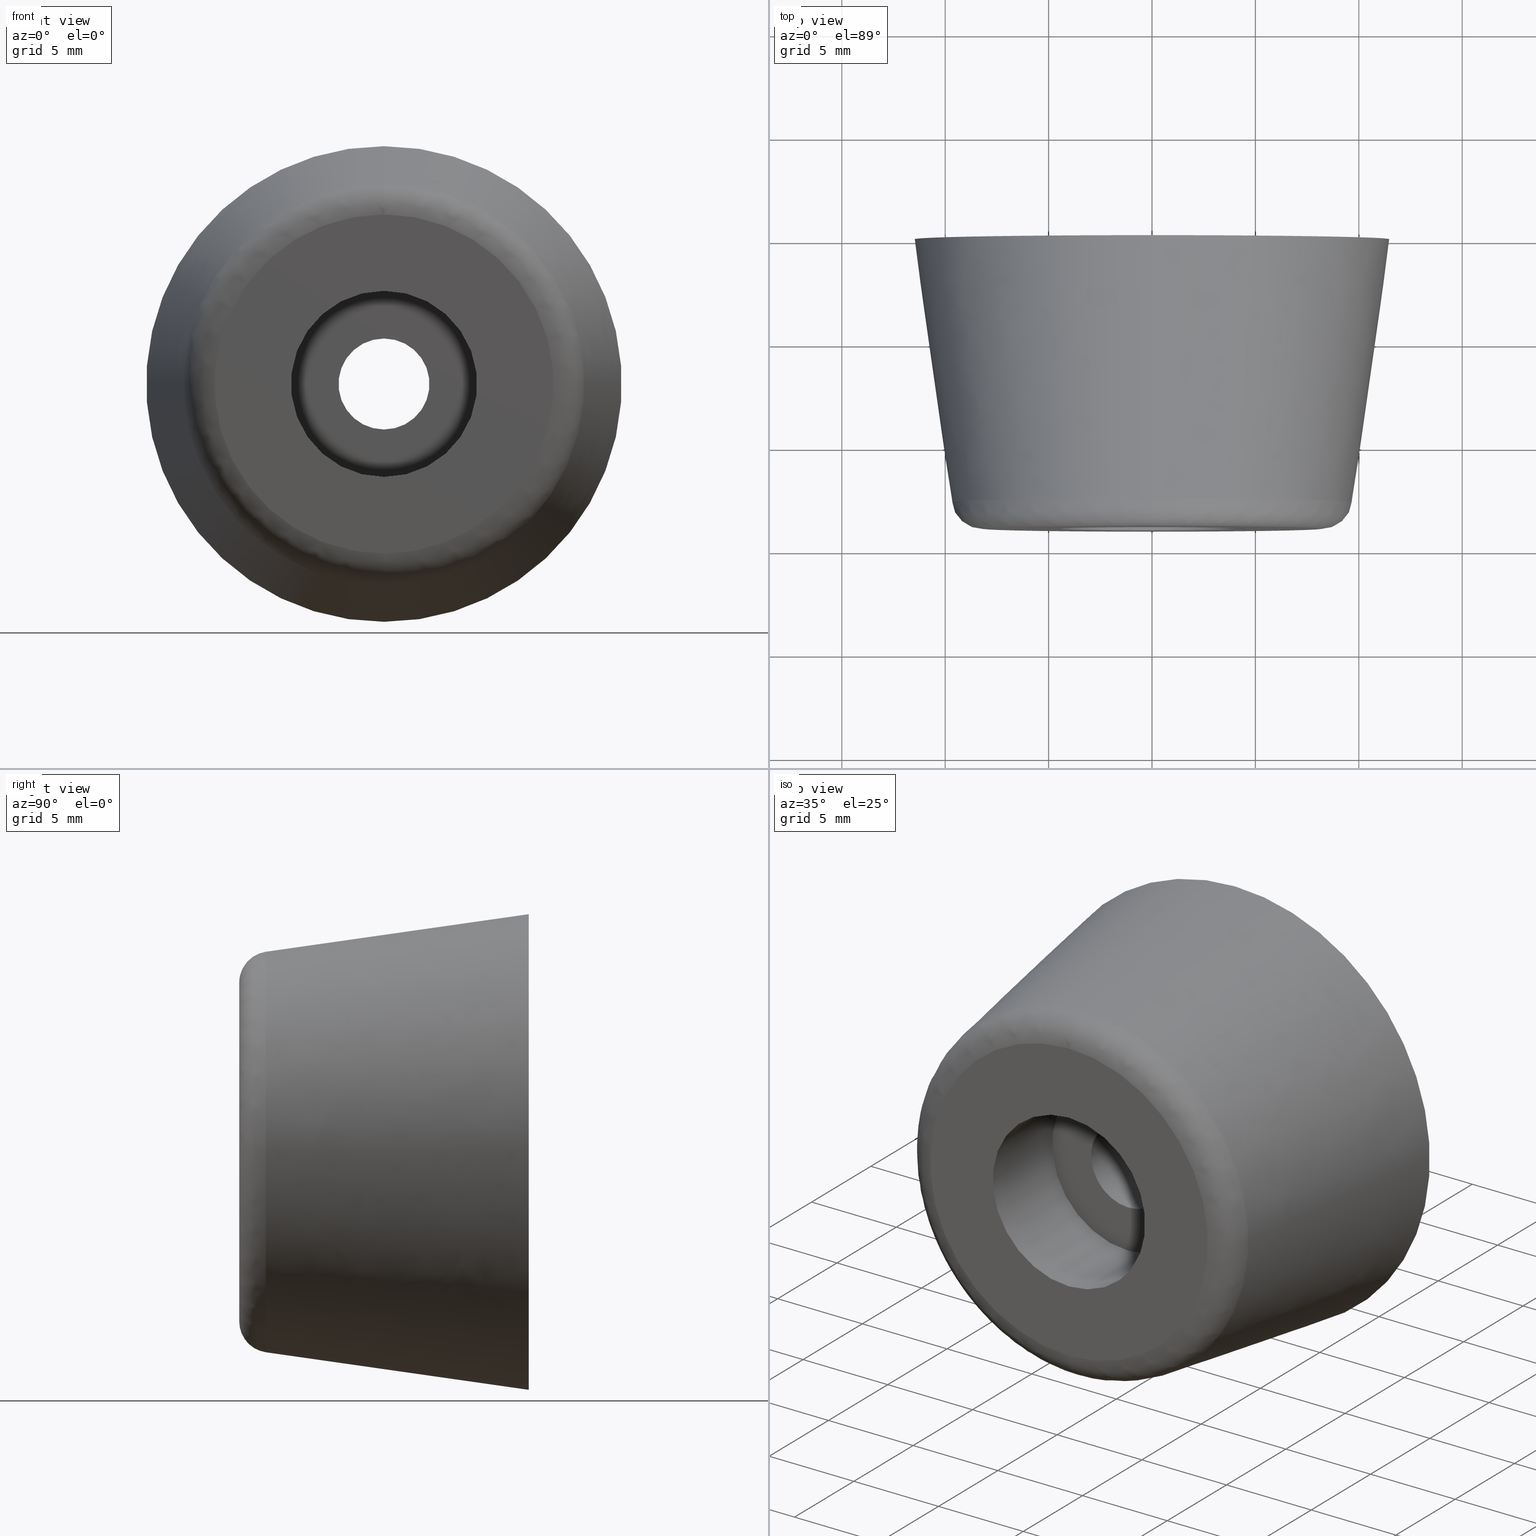
[diagram: canonical four-view strip — front | top / right | iso, engineering-drawing reading convention]
A machine part, canonical four-view strip (front | top / right | iso — engineering-drawing reading convention). The complete STEP part file that produces these views, byte-faithful:
ISO-10303-21;
HEADER;

FILE_DESCRIPTION( (''), '2;1');
FILE_NAME ('PC009.17420.TM_TP_230_28227.stp','2024-07-04T11:03:38',(''),(''),'spGate 19.8.4 (****-****-****-****)','','');

FILE_SCHEMA (('AUTOMOTIVE_DESIGN'));
ENDSEC;

DATA;
#10=(GEOMETRIC_REPRESENTATION_CONTEXT(3) GLOBAL_UNCERTAINTY_ASSIGNED_CONTEXT((#11)) GLOBAL_UNIT_ASSIGNED_CONTEXT((#12,#13,#14)) REPRESENTATION_CONTEXT('ID1','3D'));
#11=UNCERTAINTY_MEASURE_WITH_UNIT(LENGTH_MEASURE(0.01),#15,'DISTANCE_ACCURACY_VALUE','Maximum model space distance between geometric entities at asserted connectivities');
#12=(NAMED_UNIT(*) SI_UNIT($,.STERADIAN.) SOLID_ANGLE_UNIT());
#13=(CONVERSION_BASED_UNIT('DEGREE',#16) NAMED_UNIT(#17) PLANE_ANGLE_UNIT());
#14=(LENGTH_UNIT() NAMED_UNIT(*) SI_UNIT(.MILLI.,.METRE.));
#15=(LENGTH_UNIT() NAMED_UNIT(*) SI_UNIT(.MILLI.,.METRE.));
#16=PLANE_ANGLE_MEASURE_WITH_UNIT(PLANE_ANGLE_MEASURE(0.01745329252),#18);
#17=DIMENSIONAL_EXPONENTS(0.0,0.0,0.0,0.0,0.0,0.0,0.0);
#18=(NAMED_UNIT(*) PLANE_ANGLE_UNIT() SI_UNIT($,.RADIAN.));
#19=MANIFOLD_SOLID_BREP('TM_TP_230',#31);
#20=ADVANCED_BREP_SHAPE_REPRESENTATION('',(#19),#10);
#21=APPLICATION_CONTEXT('');
#22=APPLICATION_PROTOCOL_DEFINITION('International Standard','automotive_design',1999,#21);
#23=PRODUCT_DEFINITION_CONTEXT('',#21,'design');
#24=PRODUCT_CONTEXT('',#21,'mechanical');
#25=PRODUCT('','','',(#24));
#26=PRODUCT_DEFINITION_FORMATION_WITH_SPECIFIED_SOURCE('','',#25,.NOT_KNOWN.);
#27=PRODUCT_RELATED_PRODUCT_CATEGORY('tool','tool',(#25));
#28=PRODUCT_DEFINITION('','',#26,#23);
#29=PRODUCT_DEFINITION_SHAPE('','',#28);
#30=SHAPE_DEFINITION_REPRESENTATION(#29,#20);
#31=CLOSED_SHELL('',(#40,#41,#42,#43,#44,#45,#46,#47,#48,#49,#50));
#32=COLOUR_RGB('',0.00000000000E+00,0.00000000000E+00,0.00000000000E+00);
#33=FILL_AREA_STYLE_COLOUR('',#32);
#34=FILL_AREA_STYLE('',(#33));
#35=SURFACE_STYLE_FILL_AREA(#34);
#36=SURFACE_SIDE_STYLE('',(#35));
#37=SURFACE_STYLE_USAGE(.BOTH.,#36);
#38=PRESENTATION_STYLE_ASSIGNMENT((#37));
#39=STYLED_ITEM('',(#38),#19);
#40=ADVANCED_FACE('',(#52,#53),#51,.F.);
#41=ADVANCED_FACE('',(#63,#64),#62,.F.);
#42=ADVANCED_FACE('',(#74,#75),#73,.F.);
#43=ADVANCED_FACE('',(#85),#84,.F.);
#44=ADVANCED_FACE('',(#95),#94,.F.);
#45=ADVANCED_FACE('',(#105),#104,.T.);
#46=ADVANCED_FACE('',(#115),#114,.T.);
#47=ADVANCED_FACE('',(#125),#124,.T.);
#48=ADVANCED_FACE('',(#135),#134,.T.);
#49=ADVANCED_FACE('',(#145),#144,.F.);
#50=ADVANCED_FACE('',(#155),#154,.F.);
#51=PLANE('',#167);
#52=FACE_OUTER_BOUND('',#168,.T.);
#53=FACE_BOUND('',#169,.T.);
#54=COLOUR_RGB('',1.00000000000E+00,1.00000000000E+00,1.00000000000E+00);
#55=FILL_AREA_STYLE_COLOUR('',#54);
#56=FILL_AREA_STYLE('',(#55));
#57=SURFACE_STYLE_FILL_AREA(#56);
#58=SURFACE_SIDE_STYLE('',(#57));
#59=SURFACE_STYLE_USAGE(.BOTH.,#58);
#60=PRESENTATION_STYLE_ASSIGNMENT((#59));
#61=STYLED_ITEM('',(#60),#40);
#62=PLANE('',#173);
#63=FACE_OUTER_BOUND('',#174,.T.);
#64=FACE_BOUND('',#175,.T.);
#65=COLOUR_RGB('',1.00000000000E+00,1.00000000000E+00,1.00000000000E+00);
#66=FILL_AREA_STYLE_COLOUR('',#65);
#67=FILL_AREA_STYLE('',(#66));
#68=SURFACE_STYLE_FILL_AREA(#67);
#69=SURFACE_SIDE_STYLE('',(#68));
#70=SURFACE_STYLE_USAGE(.BOTH.,#69);
#71=PRESENTATION_STYLE_ASSIGNMENT((#70));
#72=STYLED_ITEM('',(#71),#41);
#73=PLANE('',#179);
#74=FACE_OUTER_BOUND('',#180,.T.);
#75=FACE_BOUND('',#181,.T.);
#76=COLOUR_RGB('',1.00000000000E+00,1.00000000000E+00,1.00000000000E+00);
#77=FILL_AREA_STYLE_COLOUR('',#76);
#78=FILL_AREA_STYLE('',(#77));
#79=SURFACE_STYLE_FILL_AREA(#78);
#80=SURFACE_SIDE_STYLE('',(#79));
#81=SURFACE_STYLE_USAGE(.BOTH.,#80);
#82=PRESENTATION_STYLE_ASSIGNMENT((#81));
#83=STYLED_ITEM('',(#82),#42);
#84=CYLINDRICAL_SURFACE('',#185,4.50000000000E+00);
#85=FACE_OUTER_BOUND('',#186,.T.);
#86=COLOUR_RGB('',1.00000000000E+00,1.00000000000E+00,1.00000000000E+00);
#87=FILL_AREA_STYLE_COLOUR('',#86);
#88=FILL_AREA_STYLE('',(#87));
#89=SURFACE_STYLE_FILL_AREA(#88);
#90=SURFACE_SIDE_STYLE('',(#89));
#91=SURFACE_STYLE_USAGE(.BOTH.,#90);
#92=PRESENTATION_STYLE_ASSIGNMENT((#91));
#93=STYLED_ITEM('',(#92),#43);
#94=CYLINDRICAL_SURFACE('',#190,4.50000000000E+00);
#95=FACE_OUTER_BOUND('',#191,.T.);
#96=COLOUR_RGB('',1.00000000000E+00,1.00000000000E+00,1.00000000000E+00);
#97=FILL_AREA_STYLE_COLOUR('',#96);
#98=FILL_AREA_STYLE('',(#97));
#99=SURFACE_STYLE_FILL_AREA(#98);
#100=SURFACE_SIDE_STYLE('',(#99));
#101=SURFACE_STYLE_USAGE(.BOTH.,#100);
#102=PRESENTATION_STYLE_ASSIGNMENT((#101));
#103=STYLED_ITEM('',(#102),#44);
#104=( BOUNDED_SURFACE() B_SPLINE_SURFACE( 2,2,((#192,#193,#194,#195,#196),(#197,#198,#199,#200,#201),(#202,#203,#204,#205,#206),(#207,#208,#209,#210,#211),(#212,#213,#214,#215,#216)), .UNSPECIFIED.,.F.,.F.,.F.) B_SPLINE_SURFACE_WITH_KNOTS((3,2,3),(3,2,3),(0.00000000000E+00,5.00000000000E-01,1.00000000000E+00),(0.00000000000E+00,5.00000000000E-01,1.00000000000E+00), .UNSPECIFIED. ) GEOMETRIC_REPRESENTATION_ITEM() RATIONAL_B_SPLINE_SURFACE(((1.00000000000E+00,7.55453954996E-01,1.00000000000E+00,7.55453954996E-01,1.00000000000E+00),(7.07106781187E-01,5.34186614452E-01,7.07106781187E-01,5.34186614452E-01,7.07106781187E-01),(1.00000000000E+00,7.55453954996E-01,1.00000000000E+00,7.55453954996E-01,1.00000000000E+00),(7.07106781187E-01,5.34186614452E-01,7.07106781187E-01,5.34186614452E-01,7.07106781187E-01),(1.00000000000E+00,7.55453954996E-01,1.00000000000E+00,7.55453954996E-01,1.00000000000E+00))) REPRESENTATION_ITEM('') SURFACE() );
#105=FACE_OUTER_BOUND('',#217,.T.);
#106=COLOUR_RGB('',1.00000000000E+00,1.00000000000E+00,1.00000000000E+00);
#107=FILL_AREA_STYLE_COLOUR('',#106);
#108=FILL_AREA_STYLE('',(#107));
#109=SURFACE_STYLE_FILL_AREA(#108);
#110=SURFACE_SIDE_STYLE('',(#109));
#111=SURFACE_STYLE_USAGE(.BOTH.,#110);
#112=PRESENTATION_STYLE_ASSIGNMENT((#111));
#113=STYLED_ITEM('',(#112),#45);
#114=( BOUNDED_SURFACE() B_SPLINE_SURFACE( 2,2,((#218,#219,#220,#221,#222),(#223,#224,#225,#226,#227),(#228,#229,#230,#231,#232),(#233,#234,#235,#236,#237),(#238,#239,#240,#241,#242)), .UNSPECIFIED.,.F.,.F.,.F.) B_SPLINE_SURFACE_WITH_KNOTS((3,2,3),(3,2,3),(0.00000000000E+00,5.00000000000E-01,1.00000000000E+00),(0.00000000000E+00,5.00000000000E-01,1.00000000000E+00), .UNSPECIFIED. ) GEOMETRIC_REPRESENTATION_ITEM() RATIONAL_B_SPLINE_SURFACE(((1.00000000000E+00,7.55453954996E-01,1.00000000000E+00,7.55453954996E-01,1.00000000000E+00),(7.07106781187E-01,5.34186614452E-01,7.07106781187E-01,5.34186614452E-01,7.07106781187E-01),(1.00000000000E+00,7.55453954996E-01,1.00000000000E+00,7.55453954996E-01,1.00000000000E+00),(7.07106781187E-01,5.34186614452E-01,7.07106781187E-01,5.34186614452E-01,7.07106781187E-01),(1.00000000000E+00,7.55453954996E-01,1.00000000000E+00,7.55453954996E-01,1.00000000000E+00))) REPRESENTATION_ITEM('') SURFACE() );
#115=FACE_OUTER_BOUND('',#243,.T.);
#116=COLOUR_RGB('',1.00000000000E+00,1.00000000000E+00,1.00000000000E+00);
#117=FILL_AREA_STYLE_COLOUR('',#116);
#118=FILL_AREA_STYLE('',(#117));
#119=SURFACE_STYLE_FILL_AREA(#118);
#120=SURFACE_SIDE_STYLE('',(#119));
#121=SURFACE_STYLE_USAGE(.BOTH.,#120);
#122=PRESENTATION_STYLE_ASSIGNMENT((#121));
#123=STYLED_ITEM('',(#122),#46);
#124=( BOUNDED_SURFACE() B_SPLINE_SURFACE( 2,1,((#244,#245),(#246,#247),(#248,#249),(#250,#251),(#252,#253)), .UNSPECIFIED.,.F.,.F.,.F.) B_SPLINE_SURFACE_WITH_KNOTS((3,2,3),(2,2),(0.00000000000E+00,5.00000000000E-01,1.00000000000E+00),(0.00000000000E+00,1.00000000000E+00), .UNSPECIFIED. ) GEOMETRIC_REPRESENTATION_ITEM() RATIONAL_B_SPLINE_SURFACE(((1.00000000000E+00,1.00000000000E+00),(7.07106781187E-01,7.07106781187E-01),(1.00000000000E+00,1.00000000000E+00),(7.07106781187E-01,7.07106781187E-01),(1.00000000000E+00,1.00000000000E+00))) REPRESENTATION_ITEM('') SURFACE() );
#125=FACE_OUTER_BOUND('',#254,.T.);
#126=COLOUR_RGB('',1.00000000000E+00,1.00000000000E+00,1.00000000000E+00);
#127=FILL_AREA_STYLE_COLOUR('',#126);
#128=FILL_AREA_STYLE('',(#127));
#129=SURFACE_STYLE_FILL_AREA(#128);
#130=SURFACE_SIDE_STYLE('',(#129));
#131=SURFACE_STYLE_USAGE(.BOTH.,#130);
#132=PRESENTATION_STYLE_ASSIGNMENT((#131));
#133=STYLED_ITEM('',(#132),#47);
#134=( BOUNDED_SURFACE() B_SPLINE_SURFACE( 2,1,((#255,#256),(#257,#258),(#259,#260),(#261,#262),(#263,#264)), .UNSPECIFIED.,.F.,.F.,.F.) B_SPLINE_SURFACE_WITH_KNOTS((3,2,3),(2,2),(0.00000000000E+00,5.00000000000E-01,1.00000000000E+00),(0.00000000000E+00,1.00000000000E+00), .UNSPECIFIED. ) GEOMETRIC_REPRESENTATION_ITEM() RATIONAL_B_SPLINE_SURFACE(((1.00000000000E+00,1.00000000000E+00),(7.07106781187E-01,7.07106781187E-01),(1.00000000000E+00,1.00000000000E+00),(7.07106781187E-01,7.07106781187E-01),(1.00000000000E+00,1.00000000000E+00))) REPRESENTATION_ITEM('') SURFACE() );
#135=FACE_OUTER_BOUND('',#265,.T.);
#136=COLOUR_RGB('',1.00000000000E+00,1.00000000000E+00,1.00000000000E+00);
#137=FILL_AREA_STYLE_COLOUR('',#136);
#138=FILL_AREA_STYLE('',(#137));
#139=SURFACE_STYLE_FILL_AREA(#138);
#140=SURFACE_SIDE_STYLE('',(#139));
#141=SURFACE_STYLE_USAGE(.BOTH.,#140);
#142=PRESENTATION_STYLE_ASSIGNMENT((#141));
#143=STYLED_ITEM('',(#142),#48);
#144=CYLINDRICAL_SURFACE('',#269,2.20000000000E+00);
#145=FACE_OUTER_BOUND('',#270,.T.);
#146=COLOUR_RGB('',1.00000000000E+00,1.00000000000E+00,1.00000000000E+00);
#147=FILL_AREA_STYLE_COLOUR('',#146);
#148=FILL_AREA_STYLE('',(#147));
#149=SURFACE_STYLE_FILL_AREA(#148);
#150=SURFACE_SIDE_STYLE('',(#149));
#151=SURFACE_STYLE_USAGE(.BOTH.,#150);
#152=PRESENTATION_STYLE_ASSIGNMENT((#151));
#153=STYLED_ITEM('',(#152),#49);
#154=CYLINDRICAL_SURFACE('',#274,2.20000000000E+00);
#155=FACE_OUTER_BOUND('',#275,.T.);
#156=COLOUR_RGB('',1.00000000000E+00,1.00000000000E+00,1.00000000000E+00);
#157=FILL_AREA_STYLE_COLOUR('',#156);
#158=FILL_AREA_STYLE('',(#157));
#159=SURFACE_STYLE_FILL_AREA(#158);
#160=SURFACE_SIDE_STYLE('',(#159));
#161=SURFACE_STYLE_USAGE(.BOTH.,#160);
#162=PRESENTATION_STYLE_ASSIGNMENT((#161));
#163=STYLED_ITEM('',(#162),#50);
#164=CARTESIAN_POINT('',(-9.35307436087E+00,-9.00000000000E+00,-5.85000000000E+00));
#165=DIRECTION('',(0.00000000000E+00,1.00000000000E+00,0.00000000000E+00));
#166=DIRECTION('',(0.00000000000E+00,-0.00000000000E+00,1.00000000000E+00));
#167=AXIS2_PLACEMENT_3D('',#164,#165,#166);
#168=EDGE_LOOP('',(#276,#277));
#169=EDGE_LOOP('',(#278,#279));
#170=CARTESIAN_POINT('',(-1.70414197447E+01,-1.40000000000E+01,-1.06587739667E+01));
#171=DIRECTION('',(0.00000000000E+00,1.00000000000E+00,0.00000000000E+00));
#172=DIRECTION('',(0.00000000000E+00,-0.00000000000E+00,1.00000000000E+00));
#173=AXIS2_PLACEMENT_3D('',#170,#171,#172);
#174=EDGE_LOOP('',(#280,#281));
#175=EDGE_LOOP('',(#282,#283));
#176=CARTESIAN_POINT('',(-2.39023011445E+01,0.00000000000E+00,2.64500000000E+01));
#177=DIRECTION('',(0.00000000000E+00,-1.00000000000E+00,-0.00000000000E+00));
#178=DIRECTION('',(0.00000000000E+00,0.00000000000E+00,-1.00000000000E+00));
#179=AXIS2_PLACEMENT_3D('',#176,#177,#178);
#180=EDGE_LOOP('',(#284,#285));
#181=EDGE_LOOP('',(#286,#287));
#182=CARTESIAN_POINT('',(-1.42108547152E-14,0.00000000000E+00,0.00000000000E+00));
#183=DIRECTION('',(-0.00000000000E+00,1.00000000000E+00,0.00000000000E+00));
#184=DIRECTION('',(-0.00000000000E+00,-0.00000000000E+00,1.00000000000E+00));
#185=AXIS2_PLACEMENT_3D('',#182,#183,#184);
#186=EDGE_LOOP('',(#288,#289,#290,#291));
#187=CARTESIAN_POINT('',(-1.42108547152E-14,0.00000000000E+00,0.00000000000E+00));
#188=DIRECTION('',(-0.00000000000E+00,1.00000000000E+00,0.00000000000E+00));
#189=DIRECTION('',(-0.00000000000E+00,-0.00000000000E+00,1.00000000000E+00));
#190=AXIS2_PLACEMENT_3D('',#187,#188,#189);
#191=EDGE_LOOP('',(#292,#293,#294,#295));
#192=CARTESIAN_POINT('',(-1.50636942910E-14,-1.27121320344E+01,9.68398113795E+00));
#193=CARTESIAN_POINT('',(-1.50411638439E-14,-1.40000000000E+01,9.50000000000E+00));
#194=CARTESIAN_POINT('',(-1.48818495250E-14,-1.40000000000E+01,8.19905689746E+00));
#195=CARTESIAN_POINT('',(-1.47225352061E-14,-1.40000000000E+01,6.89811379491E+00));
#196=CARTESIAN_POINT('',(-1.47000047590E-14,-1.27121320344E+01,6.71413265697E+00));
#197=CARTESIAN_POINT('',(-9.68398113795E+00,-1.27121320344E+01,9.68398113795E+00));
#198=CARTESIAN_POINT('',(-9.50000000000E+00,-1.40000000000E+01,9.50000000000E+00));
#199=CARTESIAN_POINT('',(-8.19905689746E+00,-1.40000000000E+01,8.19905689746E+00));
#200=CARTESIAN_POINT('',(-6.89811379491E+00,-1.40000000000E+01,6.89811379491E+00));
#201=CARTESIAN_POINT('',(-6.71413265697E+00,-1.27121320344E+01,6.71413265697E+00));
#202=CARTESIAN_POINT('',(-9.68398113795E+00,-1.27121320344E+01,-5.92933658003E-16));
#203=CARTESIAN_POINT('',(-9.50000000000E+00,-1.40000000000E+01,-5.81668806536E-16));
#204=CARTESIAN_POINT('',(-8.19905689746E+00,-1.40000000000E+01,-5.02014277923E-16));
#205=CARTESIAN_POINT('',(-6.89811379491E+00,-1.40000000000E+01,-4.22359749309E-16));
#206=CARTESIAN_POINT('',(-6.71413265697E+00,-1.27121320344E+01,-4.11094897842E-16));
#207=CARTESIAN_POINT('',(-9.68398113795E+00,-1.27121320344E+01,-9.68398113795E+00));
#208=CARTESIAN_POINT('',(-9.50000000000E+00,-1.40000000000E+01,-9.50000000000E+00));
#209=CARTESIAN_POINT('',(-8.19905689746E+00,-1.40000000000E+01,-8.19905689746E+00));
#210=CARTESIAN_POINT('',(-6.89811379491E+00,-1.40000000000E+01,-6.89811379491E+00));
#211=CARTESIAN_POINT('',(-6.71413265697E+00,-1.27121320344E+01,-6.71413265697E+00));
#212=CARTESIAN_POINT('',(-1.38778269750E-14,-1.27121320344E+01,-9.68398113795E+00));
#213=CARTESIAN_POINT('',(-1.38778262309E-14,-1.40000000000E+01,-9.50000000000E+00));
#214=CARTESIAN_POINT('',(-1.38778209692E-14,-1.40000000000E+01,-8.19905689746E+00));
#215=CARTESIAN_POINT('',(-1.38778157075E-14,-1.40000000000E+01,-6.89811379491E+00));
#216=CARTESIAN_POINT('',(-1.38778149633E-14,-1.27121320344E+01,-6.71413265697E+00));
#217=EDGE_LOOP('',(#296,#297,#298,#299));
#218=CARTESIAN_POINT('',(-1.38778269750E-14,-1.27121320344E+01,-9.68398113795E+00));
#219=CARTESIAN_POINT('',(-1.38778262309E-14,-1.40000000000E+01,-9.50000000000E+00));
#220=CARTESIAN_POINT('',(-1.38778209692E-14,-1.40000000000E+01,-8.19905689746E+00));
#221=CARTESIAN_POINT('',(-1.38778157075E-14,-1.40000000000E+01,-6.89811379491E+00));
#222=CARTESIAN_POINT('',(-1.38778149633E-14,-1.27121320344E+01,-6.71413265697E+00));
#223=CARTESIAN_POINT('',(9.68398113795E+00,-1.27121320344E+01,-9.68398113795E+00));
#224=CARTESIAN_POINT('',(9.50000000000E+00,-1.40000000000E+01,-9.50000000000E+00));
#225=CARTESIAN_POINT('',(8.19905689746E+00,-1.40000000000E+01,-8.19905689746E+00));
#226=CARTESIAN_POINT('',(6.89811379491E+00,-1.40000000000E+01,-6.89811379491E+00));
#227=CARTESIAN_POINT('',(6.71413265697E+00,-1.27121320344E+01,-6.71413265697E+00));
#228=CARTESIAN_POINT('',(9.68398113795E+00,-1.27121320344E+01,-5.93011992356E-16));
#229=CARTESIAN_POINT('',(9.50000000000E+00,-1.40000000000E+01,-5.81745652654E-16));
#230=CARTESIAN_POINT('',(8.19905689746E+00,-1.40000000000E+01,-5.02080600627E-16));
#231=CARTESIAN_POINT('',(6.89811379491E+00,-1.40000000000E+01,-4.22415548600E-16));
#232=CARTESIAN_POINT('',(6.71413265697E+00,-1.27121320344E+01,-4.11149208898E-16));
#233=CARTESIAN_POINT('',(9.68398113795E+00,-1.27121320344E+01,9.68398113795E+00));
#234=CARTESIAN_POINT('',(9.50000000000E+00,-1.40000000000E+01,9.50000000000E+00));
#235=CARTESIAN_POINT('',(8.19905689746E+00,-1.40000000000E+01,8.19905689746E+00));
#236=CARTESIAN_POINT('',(6.89811379491E+00,-1.40000000000E+01,6.89811379491E+00));
#237=CARTESIAN_POINT('',(6.71413265697E+00,-1.27121320344E+01,6.71413265697E+00));
#238=CARTESIAN_POINT('',(-1.26918029903E-14,-1.27121320344E+01,9.68398113795E+00));
#239=CARTESIAN_POINT('',(-1.27143349256E-14,-1.40000000000E+01,9.50000000000E+00));
#240=CARTESIAN_POINT('',(-1.28736597679E-14,-1.40000000000E+01,8.19905689746E+00));
#241=CARTESIAN_POINT('',(-1.30329846103E-14,-1.40000000000E+01,6.89811379491E+00));
#242=CARTESIAN_POINT('',(-1.30555165455E-14,-1.27121320344E+01,6.71413265697E+00));
#243=EDGE_LOOP('',(#300,#301,#302,#303));
#244=CARTESIAN_POINT('',(-1.65827460159E-14,-1.27121320344E+01,-9.68398113795E+00));
#245=CARTESIAN_POINT('',(-1.70275423532E-14,0.00000000000E+00,-1.15000000000E+01));
#246=CARTESIAN_POINT('',(-9.68398113795E+00,-1.27121320344E+01,-9.68398113795E+00));
#247=CARTESIAN_POINT('',(-1.15000000000E+01,0.00000000000E+00,-1.15000000000E+01));
#248=CARTESIAN_POINT('',(-9.68398113795E+00,-1.27121320344E+01,1.77891847554E-15));
#249=CARTESIAN_POINT('',(-1.15000000000E+01,0.00000000000E+00,2.11251572853E-15));
#250=CARTESIAN_POINT('',(-9.68398113795E+00,-1.27121320344E+01,9.68398113795E+00));
#251=CARTESIAN_POINT('',(-1.15000000000E+01,0.00000000000E+00,1.15000000000E+01));
#252=CARTESIAN_POINT('',(-1.30249090648E-14,-1.27121320344E+01,9.68398113795E+00));
#253=CARTESIAN_POINT('',(-1.28025108962E-14,0.00000000000E+00,1.15000000000E+01));
#254=EDGE_LOOP('',(#304,#305,#306,#307));
#255=CARTESIAN_POINT('',(-1.30249090648E-14,-1.27121320344E+01,9.68398113795E+00));
#256=CARTESIAN_POINT('',(-1.28025108962E-14,0.00000000000E+00,1.15000000000E+01));
#257=CARTESIAN_POINT('',(9.68398113795E+00,-1.27121320344E+01,9.68398113795E+00));
#258=CARTESIAN_POINT('',(1.15000000000E+01,0.00000000000E+00,1.15000000000E+01));
#259=CARTESIAN_POINT('',(9.68398113795E+00,-1.27121320344E+01,-5.92972825180E-16));
#260=CARTESIAN_POINT('',(1.15000000000E+01,0.00000000000E+00,-7.04171909510E-16));
#261=CARTESIAN_POINT('',(9.68398113795E+00,-1.27121320344E+01,-9.68398113795E+00));
#262=CARTESIAN_POINT('',(1.15000000000E+01,0.00000000000E+00,-1.15000000000E+01));
#263=CARTESIAN_POINT('',(-1.42108547152E-14,-1.27121320344E+01,-9.68398113795E+00));
#264=CARTESIAN_POINT('',(-1.42108547152E-14,0.00000000000E+00,-1.15000000000E+01));
#265=EDGE_LOOP('',(#308,#309,#310,#311));
#266=CARTESIAN_POINT('',(-1.42108547152E-14,0.00000000000E+00,0.00000000000E+00));
#267=DIRECTION('',(-0.00000000000E+00,1.00000000000E+00,0.00000000000E+00));
#268=DIRECTION('',(-0.00000000000E+00,-0.00000000000E+00,1.00000000000E+00));
#269=AXIS2_PLACEMENT_3D('',#266,#267,#268);
#270=EDGE_LOOP('',(#312,#313,#314,#315));
#271=CARTESIAN_POINT('',(-1.42108547152E-14,0.00000000000E+00,0.00000000000E+00));
#272=DIRECTION('',(-0.00000000000E+00,1.00000000000E+00,0.00000000000E+00));
#273=DIRECTION('',(-0.00000000000E+00,-0.00000000000E+00,1.00000000000E+00));
#274=AXIS2_PLACEMENT_3D('',#271,#272,#273);
#275=EDGE_LOOP('',(#316,#317,#318,#319));
#276=ORIENTED_EDGE('',*,*,#320,.T.);
#277=ORIENTED_EDGE('',*,*,#321,.T.);
#278=ORIENTED_EDGE('',*,*,#322,.F.);
#279=ORIENTED_EDGE('',*,*,#323,.F.);
#280=ORIENTED_EDGE('',*,*,#324,.T.);
#281=ORIENTED_EDGE('',*,*,#325,.T.);
#282=ORIENTED_EDGE('',*,*,#326,.F.);
#283=ORIENTED_EDGE('',*,*,#327,.F.);
#284=ORIENTED_EDGE('',*,*,#328,.F.);
#285=ORIENTED_EDGE('',*,*,#329,.F.);
#286=ORIENTED_EDGE('',*,*,#330,.T.);
#287=ORIENTED_EDGE('',*,*,#331,.T.);
#288=ORIENTED_EDGE('',*,*,#327,.T.);
#289=ORIENTED_EDGE('',*,*,#332,.T.);
#290=ORIENTED_EDGE('',*,*,#320,.F.);
#291=ORIENTED_EDGE('',*,*,#333,.F.);
#292=ORIENTED_EDGE('',*,*,#321,.F.);
#293=ORIENTED_EDGE('',*,*,#332,.F.);
#294=ORIENTED_EDGE('',*,*,#326,.T.);
#295=ORIENTED_EDGE('',*,*,#333,.T.);
#296=ORIENTED_EDGE('',*,*,#325,.F.);
#297=ORIENTED_EDGE('',*,*,#334,.F.);
#298=ORIENTED_EDGE('',*,*,#335,.T.);
#299=ORIENTED_EDGE('',*,*,#336,.T.);
#300=ORIENTED_EDGE('',*,*,#337,.T.);
#301=ORIENTED_EDGE('',*,*,#334,.T.);
#302=ORIENTED_EDGE('',*,*,#324,.F.);
#303=ORIENTED_EDGE('',*,*,#336,.F.);
#304=ORIENTED_EDGE('',*,*,#328,.T.);
#305=ORIENTED_EDGE('',*,*,#338,.F.);
#306=ORIENTED_EDGE('',*,*,#335,.F.);
#307=ORIENTED_EDGE('',*,*,#339,.T.);
#308=ORIENTED_EDGE('',*,*,#337,.F.);
#309=ORIENTED_EDGE('',*,*,#338,.T.);
#310=ORIENTED_EDGE('',*,*,#329,.T.);
#311=ORIENTED_EDGE('',*,*,#339,.F.);
#312=ORIENTED_EDGE('',*,*,#323,.T.);
#313=ORIENTED_EDGE('',*,*,#340,.T.);
#314=ORIENTED_EDGE('',*,*,#330,.F.);
#315=ORIENTED_EDGE('',*,*,#341,.F.);
#316=ORIENTED_EDGE('',*,*,#331,.F.);
#317=ORIENTED_EDGE('',*,*,#340,.F.);
#318=ORIENTED_EDGE('',*,*,#322,.T.);
#319=ORIENTED_EDGE('',*,*,#341,.T.);
#320=EDGE_CURVE('',#342,#343,#344,.T.);
#321=EDGE_CURVE('',#343,#342,#350,.T.);
#322=EDGE_CURVE('',#356,#357,#358,.T.);
#323=EDGE_CURVE('',#357,#356,#364,.T.);
#324=EDGE_CURVE('',#370,#371,#372,.T.);
#325=EDGE_CURVE('',#371,#370,#378,.T.);
#326=EDGE_CURVE('',#384,#385,#386,.T.);
#327=EDGE_CURVE('',#385,#384,#392,.T.);
#328=EDGE_CURVE('',#398,#399,#400,.T.);
#329=EDGE_CURVE('',#399,#398,#406,.T.);
#330=EDGE_CURVE('',#412,#413,#414,.T.);
#331=EDGE_CURVE('',#413,#412,#420,.T.);
#332=EDGE_CURVE('',#384,#343,#426,.T.);
#333=EDGE_CURVE('',#385,#342,#432,.T.);
#334=EDGE_CURVE('',#438,#371,#439,.T.);
#335=EDGE_CURVE('',#438,#445,#446,.T.);
#336=EDGE_CURVE('',#445,#370,#452,.T.);
#337=EDGE_CURVE('',#445,#438,#458,.T.);
#338=EDGE_CURVE('',#445,#399,#464,.T.);
#339=EDGE_CURVE('',#438,#398,#470,.T.);
#340=EDGE_CURVE('',#356,#413,#476,.T.);
#341=EDGE_CURVE('',#357,#412,#482,.T.);
#342=VERTEX_POINT('',#488);
#343=VERTEX_POINT('',#489);
#344=CIRCLE('',#493,4.50000000000E+00);
#345=COLOUR_RGB('',1.00000000000E+00,1.00000000000E+00,1.00000000000E+00);
#346=DRAUGHTING_PRE_DEFINED_CURVE_FONT('continuous');
#347=CURVE_STYLE( '',#346, POSITIVE_LENGTH_MEASURE(1.00000000000E-06),#345);
#348=PRESENTATION_STYLE_ASSIGNMENT((#347));
#349=STYLED_ITEM('',(#348),#320);
#350=CIRCLE('',#497,4.50000000000E+00);
#351=COLOUR_RGB('',1.00000000000E+00,1.00000000000E+00,1.00000000000E+00);
#352=DRAUGHTING_PRE_DEFINED_CURVE_FONT('continuous');
#353=CURVE_STYLE( '',#352, POSITIVE_LENGTH_MEASURE(1.00000000000E-06),#351);
#354=PRESENTATION_STYLE_ASSIGNMENT((#353));
#355=STYLED_ITEM('',(#354),#321);
#356=VERTEX_POINT('',#498);
#357=VERTEX_POINT('',#499);
#358=CIRCLE('',#503,2.20000000000E+00);
#359=COLOUR_RGB('',1.00000000000E+00,1.00000000000E+00,1.00000000000E+00);
#360=DRAUGHTING_PRE_DEFINED_CURVE_FONT('continuous');
#361=CURVE_STYLE( '',#360, POSITIVE_LENGTH_MEASURE(1.00000000000E-06),#359);
#362=PRESENTATION_STYLE_ASSIGNMENT((#361));
#363=STYLED_ITEM('',(#362),#322);
#364=CIRCLE('',#507,2.20000000000E+00);
#365=COLOUR_RGB('',1.00000000000E+00,1.00000000000E+00,1.00000000000E+00);
#366=DRAUGHTING_PRE_DEFINED_CURVE_FONT('continuous');
#367=CURVE_STYLE( '',#366, POSITIVE_LENGTH_MEASURE(1.00000000000E-06),#365);
#368=PRESENTATION_STYLE_ASSIGNMENT((#367));
#369=STYLED_ITEM('',(#368),#323);
#370=VERTEX_POINT('',#508);
#371=VERTEX_POINT('',#509);
#372=CIRCLE('',#513,8.19905689746E+00);
#373=COLOUR_RGB('',1.00000000000E+00,1.00000000000E+00,1.00000000000E+00);
#374=DRAUGHTING_PRE_DEFINED_CURVE_FONT('continuous');
#375=CURVE_STYLE( '',#374, POSITIVE_LENGTH_MEASURE(1.00000000000E-06),#373);
#376=PRESENTATION_STYLE_ASSIGNMENT((#375));
#377=STYLED_ITEM('',(#376),#324);
#378=CIRCLE('',#517,8.19905689746E+00);
#379=COLOUR_RGB('',1.00000000000E+00,1.00000000000E+00,1.00000000000E+00);
#380=DRAUGHTING_PRE_DEFINED_CURVE_FONT('continuous');
#381=CURVE_STYLE( '',#380, POSITIVE_LENGTH_MEASURE(1.00000000000E-06),#379);
#382=PRESENTATION_STYLE_ASSIGNMENT((#381));
#383=STYLED_ITEM('',(#382),#325);
#384=VERTEX_POINT('',#518);
#385=VERTEX_POINT('',#519);
#386=CIRCLE('',#523,4.50000000000E+00);
#387=COLOUR_RGB('',1.00000000000E+00,1.00000000000E+00,1.00000000000E+00);
#388=DRAUGHTING_PRE_DEFINED_CURVE_FONT('continuous');
#389=CURVE_STYLE( '',#388, POSITIVE_LENGTH_MEASURE(1.00000000000E-06),#387);
#390=PRESENTATION_STYLE_ASSIGNMENT((#389));
#391=STYLED_ITEM('',(#390),#326);
#392=CIRCLE('',#527,4.50000000000E+00);
#393=COLOUR_RGB('',1.00000000000E+00,1.00000000000E+00,1.00000000000E+00);
#394=DRAUGHTING_PRE_DEFINED_CURVE_FONT('continuous');
#395=CURVE_STYLE( '',#394, POSITIVE_LENGTH_MEASURE(1.00000000000E-06),#393);
#396=PRESENTATION_STYLE_ASSIGNMENT((#395));
#397=STYLED_ITEM('',(#396),#327);
#398=VERTEX_POINT('',#528);
#399=VERTEX_POINT('',#529);
#400=CIRCLE('',#533,1.15000000000E+01);
#401=COLOUR_RGB('',1.00000000000E+00,1.00000000000E+00,1.00000000000E+00);
#402=DRAUGHTING_PRE_DEFINED_CURVE_FONT('continuous');
#403=CURVE_STYLE( '',#402, POSITIVE_LENGTH_MEASURE(1.00000000000E-06),#401);
#404=PRESENTATION_STYLE_ASSIGNMENT((#403));
#405=STYLED_ITEM('',(#404),#328);
#406=CIRCLE('',#537,1.15000000000E+01);
#407=COLOUR_RGB('',1.00000000000E+00,1.00000000000E+00,1.00000000000E+00);
#408=DRAUGHTING_PRE_DEFINED_CURVE_FONT('continuous');
#409=CURVE_STYLE( '',#408, POSITIVE_LENGTH_MEASURE(1.00000000000E-06),#407);
#410=PRESENTATION_STYLE_ASSIGNMENT((#409));
#411=STYLED_ITEM('',(#410),#329);
#412=VERTEX_POINT('',#538);
#413=VERTEX_POINT('',#539);
#414=CIRCLE('',#543,2.20000000000E+00);
#415=COLOUR_RGB('',1.00000000000E+00,1.00000000000E+00,1.00000000000E+00);
#416=DRAUGHTING_PRE_DEFINED_CURVE_FONT('continuous');
#417=CURVE_STYLE( '',#416, POSITIVE_LENGTH_MEASURE(1.00000000000E-06),#415);
#418=PRESENTATION_STYLE_ASSIGNMENT((#417));
#419=STYLED_ITEM('',(#418),#330);
#420=CIRCLE('',#547,2.20000000000E+00);
#421=COLOUR_RGB('',1.00000000000E+00,1.00000000000E+00,1.00000000000E+00);
#422=DRAUGHTING_PRE_DEFINED_CURVE_FONT('continuous');
#423=CURVE_STYLE( '',#422, POSITIVE_LENGTH_MEASURE(1.00000000000E-06),#421);
#424=PRESENTATION_STYLE_ASSIGNMENT((#423));
#425=STYLED_ITEM('',(#424),#331);
#426=(BOUNDED_CURVE() B_SPLINE_CURVE(1,(#548,#549),.UNSPECIFIED.,.F.,.F.) B_SPLINE_CURVE_WITH_KNOTS((2,2),(8.33333383004E-02,9.16666664635E-01),.UNSPECIFIED.) CURVE() GEOMETRIC_REPRESENTATION_ITEM() RATIONAL_B_SPLINE_CURVE((1.00000000000E+00,1.00000000000E+00)) REPRESENTATION_ITEM('') );
#427=COLOUR_RGB('',1.00000000000E+00,1.00000000000E+00,1.00000000000E+00);
#428=DRAUGHTING_PRE_DEFINED_CURVE_FONT('continuous');
#429=CURVE_STYLE( '',#428, POSITIVE_LENGTH_MEASURE(1.00000000000E-06),#427);
#430=PRESENTATION_STYLE_ASSIGNMENT((#429));
#431=STYLED_ITEM('',(#430),#332);
#432=(BOUNDED_CURVE() B_SPLINE_CURVE(1,(#550,#551),.UNSPECIFIED.,.F.,.F.) B_SPLINE_CURVE_WITH_KNOTS((2,2),(8.33333333333E-02,9.16666666667E-01),.UNSPECIFIED.) CURVE() GEOMETRIC_REPRESENTATION_ITEM() RATIONAL_B_SPLINE_CURVE((7.50000000000E-01,7.50000000000E-01)) REPRESENTATION_ITEM('') );
#433=COLOUR_RGB('',1.00000000000E+00,1.00000000000E+00,1.00000000000E+00);
#434=DRAUGHTING_PRE_DEFINED_CURVE_FONT('continuous');
#435=CURVE_STYLE( '',#434, POSITIVE_LENGTH_MEASURE(1.00000000000E-06),#433);
#436=PRESENTATION_STYLE_ASSIGNMENT((#435));
#437=STYLED_ITEM('',(#436),#333);
#438=VERTEX_POINT('',#552);
#439=(BOUNDED_CURVE() B_SPLINE_CURVE(2,(#553,#554,#555),.UNSPECIFIED.,.F.,.F.) B_SPLINE_CURVE_WITH_KNOTS((3,3),(0.00000000000E+00,5.00000000000E-01),.UNSPECIFIED.) CURVE() GEOMETRIC_REPRESENTATION_ITEM() RATIONAL_B_SPLINE_CURVE((1.00000000000E+00,7.55453954996E-01,1.00000000000E+00)) REPRESENTATION_ITEM('') );
#440=COLOUR_RGB('',1.00000000000E+00,1.00000000000E+00,1.00000000000E+00);
#441=DRAUGHTING_PRE_DEFINED_CURVE_FONT('continuous');
#442=CURVE_STYLE( '',#441, POSITIVE_LENGTH_MEASURE(1.00000000000E-06),#440);
#443=PRESENTATION_STYLE_ASSIGNMENT((#442));
#444=STYLED_ITEM('',(#443),#334);
#445=VERTEX_POINT('',#556);
#446=CIRCLE('',#560,9.68398113795E+00);
#447=COLOUR_RGB('',1.00000000000E+00,1.00000000000E+00,1.00000000000E+00);
#448=DRAUGHTING_PRE_DEFINED_CURVE_FONT('continuous');
#449=CURVE_STYLE( '',#448, POSITIVE_LENGTH_MEASURE(1.00000000000E-06),#447);
#450=PRESENTATION_STYLE_ASSIGNMENT((#449));
#451=STYLED_ITEM('',(#450),#335);
#452=(BOUNDED_CURVE() B_SPLINE_CURVE(3,(#561,#562,#563,#564,#565),.UNSPECIFIED.,.F.,.F.) B_SPLINE_CURVE_WITH_KNOTS((4,1,4),(0.00000000000E+00,2.50000001635E-01,5.00000002904E-01),.UNSPECIFIED.) CURVE() GEOMETRIC_REPRESENTATION_ITEM() RATIONAL_B_SPLINE_CURVE((1.00000000000E+00,1.00000000000E+00,1.00000000000E+00,1.00000000000E+00,1.00000000000E+00)) REPRESENTATION_ITEM('') );
#453=COLOUR_RGB('',1.00000000000E+00,1.00000000000E+00,1.00000000000E+00);
#454=DRAUGHTING_PRE_DEFINED_CURVE_FONT('continuous');
#455=CURVE_STYLE( '',#454, POSITIVE_LENGTH_MEASURE(1.00000000000E-06),#453);
#456=PRESENTATION_STYLE_ASSIGNMENT((#455));
#457=STYLED_ITEM('',(#456),#336);
#458=CIRCLE('',#569,9.68398113795E+00);
#459=COLOUR_RGB('',1.00000000000E+00,1.00000000000E+00,1.00000000000E+00);
#460=DRAUGHTING_PRE_DEFINED_CURVE_FONT('continuous');
#461=CURVE_STYLE( '',#460, POSITIVE_LENGTH_MEASURE(1.00000000000E-06),#459);
#462=PRESENTATION_STYLE_ASSIGNMENT((#461));
#463=STYLED_ITEM('',(#462),#337);
#464=(BOUNDED_CURVE() B_SPLINE_CURVE(1,(#570,#571),.UNSPECIFIED.,.F.,.F.) B_SPLINE_CURVE_WITH_KNOTS((2,2),(0.00000000000E+00,1.00000000000E+00),.UNSPECIFIED.) CURVE() GEOMETRIC_REPRESENTATION_ITEM() RATIONAL_B_SPLINE_CURVE((1.00000000000E+00,1.00000000000E+00)) REPRESENTATION_ITEM('') );
#465=COLOUR_RGB('',1.00000000000E+00,1.00000000000E+00,1.00000000000E+00);
#466=DRAUGHTING_PRE_DEFINED_CURVE_FONT('continuous');
#467=CURVE_STYLE( '',#466, POSITIVE_LENGTH_MEASURE(1.00000000000E-06),#465);
#468=PRESENTATION_STYLE_ASSIGNMENT((#467));
#469=STYLED_ITEM('',(#468),#338);
#470=(BOUNDED_CURVE() B_SPLINE_CURVE(1,(#572,#573),.UNSPECIFIED.,.F.,.F.) B_SPLINE_CURVE_WITH_KNOTS((2,2),(0.00000000000E+00,1.00000000000E+00),.UNSPECIFIED.) CURVE() GEOMETRIC_REPRESENTATION_ITEM() RATIONAL_B_SPLINE_CURVE((7.50000000000E-01,7.50000000000E-01)) REPRESENTATION_ITEM('') );
#471=COLOUR_RGB('',1.00000000000E+00,1.00000000000E+00,1.00000000000E+00);
#472=DRAUGHTING_PRE_DEFINED_CURVE_FONT('continuous');
#473=CURVE_STYLE( '',#472, POSITIVE_LENGTH_MEASURE(1.00000000000E-06),#471);
#474=PRESENTATION_STYLE_ASSIGNMENT((#473));
#475=STYLED_ITEM('',(#474),#339);
#476=(BOUNDED_CURVE() B_SPLINE_CURVE(1,(#574,#575),.UNSPECIFIED.,.F.,.F.) B_SPLINE_CURVE_WITH_KNOTS((2,2),(8.33333343261E-02,9.16666664274E-01),.UNSPECIFIED.) CURVE() GEOMETRIC_REPRESENTATION_ITEM() RATIONAL_B_SPLINE_CURVE((1.00000000000E+00,1.00000000000E+00)) REPRESENTATION_ITEM('') );
#477=COLOUR_RGB('',1.00000000000E+00,1.00000000000E+00,1.00000000000E+00);
#478=DRAUGHTING_PRE_DEFINED_CURVE_FONT('continuous');
#479=CURVE_STYLE( '',#478, POSITIVE_LENGTH_MEASURE(1.00000000000E-06),#477);
#480=PRESENTATION_STYLE_ASSIGNMENT((#479));
#481=STYLED_ITEM('',(#480),#340);
#482=(BOUNDED_CURVE() B_SPLINE_CURVE(1,(#576,#577),.UNSPECIFIED.,.F.,.F.) B_SPLINE_CURVE_WITH_KNOTS((2,2),(8.33333333333E-02,9.16666666667E-01),.UNSPECIFIED.) CURVE() GEOMETRIC_REPRESENTATION_ITEM() RATIONAL_B_SPLINE_CURVE((7.50000000000E-01,7.50000000000E-01)) REPRESENTATION_ITEM('') );
#483=COLOUR_RGB('',1.00000000000E+00,1.00000000000E+00,1.00000000000E+00);
#484=DRAUGHTING_PRE_DEFINED_CURVE_FONT('continuous');
#485=CURVE_STYLE( '',#484, POSITIVE_LENGTH_MEASURE(1.00000000000E-06),#483);
#486=PRESENTATION_STYLE_ASSIGNMENT((#485));
#487=STYLED_ITEM('',(#486),#341);
#488=CARTESIAN_POINT('',(-1.42108547152E-14,-9.00000000000E+00,-4.50000000000E+00));
#489=CARTESIAN_POINT('',(-1.37667655054E-14,-9.00000000000E+00,4.50000000000E+00));
#490=CARTESIAN_POINT('',(-1.42108547152E-14,-9.00000000000E+00,0.00000000000E+00));
#491=DIRECTION('',(0.00000000000E+00,-1.00000000000E+00,-0.00000000000E+00));
#492=DIRECTION('',(-1.22460635382E-16,0.00000000000E+00,-1.00000000000E+00));
#493=AXIS2_PLACEMENT_3D('',#490,#491,#492);
#494=CARTESIAN_POINT('',(-1.42108547152E-14,-9.00000000000E+00,0.00000000000E+00));
#495=DIRECTION('',(0.00000000000E+00,-1.00000000000E+00,-0.00000000000E+00));
#496=DIRECTION('',(-1.22460635382E-16,0.00000000000E+00,-1.00000000000E+00));
#497=AXIS2_PLACEMENT_3D('',#494,#495,#496);
#498=CARTESIAN_POINT('',(-1.40628249786E-14,-9.00000000000E+00,2.20000000000E+00));
#499=CARTESIAN_POINT('',(-1.42108547152E-14,-9.00000000000E+00,-2.20000000000E+00));
#500=CARTESIAN_POINT('',(-1.42108547152E-14,-9.00000000000E+00,0.00000000000E+00));
#501=DIRECTION('',(0.00000000000E+00,-1.00000000000E+00,-0.00000000000E+00));
#502=DIRECTION('',(-1.22460635382E-16,0.00000000000E+00,-1.00000000000E+00));
#503=AXIS2_PLACEMENT_3D('',#500,#501,#502);
#504=CARTESIAN_POINT('',(-1.42108547152E-14,-9.00000000000E+00,0.00000000000E+00));
#505=DIRECTION('',(0.00000000000E+00,-1.00000000000E+00,-0.00000000000E+00));
#506=DIRECTION('',(-1.22460635382E-16,0.00000000000E+00,-1.00000000000E+00));
#507=AXIS2_PLACEMENT_3D('',#504,#505,#506);
#508=CARTESIAN_POINT('',(-1.42108547152E-14,-1.40000000000E+01,-8.19905689746E+00));
#509=CARTESIAN_POINT('',(-1.36187357687E-14,-1.40000000000E+01,8.19905689746E+00));
#510=CARTESIAN_POINT('',(-1.42108547152E-14,-1.40000000000E+01,0.00000000000E+00));
#511=DIRECTION('',(0.00000000000E+00,-1.00000000000E+00,-0.00000000000E+00));
#512=DIRECTION('',(-1.22460635382E-16,0.00000000000E+00,-1.00000000000E+00));
#513=AXIS2_PLACEMENT_3D('',#510,#511,#512);
#514=CARTESIAN_POINT('',(-1.42108547152E-14,-1.40000000000E+01,0.00000000000E+00));
#515=DIRECTION('',(0.00000000000E+00,-1.00000000000E+00,-0.00000000000E+00));
#516=DIRECTION('',(-1.22460635382E-16,0.00000000000E+00,-1.00000000000E+00));
#517=AXIS2_PLACEMENT_3D('',#514,#515,#516);
#518=CARTESIAN_POINT('',(-1.37667655054E-14,-1.40000000000E+01,4.50000000000E+00));
#519=CARTESIAN_POINT('',(-1.42108547152E-14,-1.40000000000E+01,-4.50000000000E+00));
#520=CARTESIAN_POINT('',(-1.42108547152E-14,-1.40000000000E+01,0.00000000000E+00));
#521=DIRECTION('',(0.00000000000E+00,-1.00000000000E+00,-0.00000000000E+00));
#522=DIRECTION('',(-1.22460635382E-16,0.00000000000E+00,-1.00000000000E+00));
#523=AXIS2_PLACEMENT_3D('',#520,#521,#522);
#524=CARTESIAN_POINT('',(-1.42108547152E-14,-1.40000000000E+01,0.00000000000E+00));
#525=DIRECTION('',(0.00000000000E+00,-1.00000000000E+00,-0.00000000000E+00));
#526=DIRECTION('',(-1.22460635382E-16,0.00000000000E+00,-1.00000000000E+00));
#527=AXIS2_PLACEMENT_3D('',#524,#525,#526);
#528=CARTESIAN_POINT('',(-1.36187357687E-14,0.00000000000E+00,1.15000000000E+01));
#529=CARTESIAN_POINT('',(-1.42108547152E-14,0.00000000000E+00,-1.15000000000E+01));
#530=CARTESIAN_POINT('',(-1.42108547152E-14,0.00000000000E+00,0.00000000000E+00));
#531=DIRECTION('',(0.00000000000E+00,-1.00000000000E+00,-0.00000000000E+00));
#532=DIRECTION('',(-1.22460635382E-16,0.00000000000E+00,-1.00000000000E+00));
#533=AXIS2_PLACEMENT_3D('',#530,#531,#532);
#534=CARTESIAN_POINT('',(-1.42108547152E-14,0.00000000000E+00,0.00000000000E+00));
#535=DIRECTION('',(0.00000000000E+00,-1.00000000000E+00,-0.00000000000E+00));
#536=DIRECTION('',(-1.22460635382E-16,0.00000000000E+00,-1.00000000000E+00));
#537=AXIS2_PLACEMENT_3D('',#534,#535,#536);
#538=CARTESIAN_POINT('',(-1.42108547152E-14,0.00000000000E+00,-2.20000000000E+00));
#539=CARTESIAN_POINT('',(-1.40628249786E-14,0.00000000000E+00,2.20000000000E+00));
#540=CARTESIAN_POINT('',(-1.42108547152E-14,0.00000000000E+00,0.00000000000E+00));
#541=DIRECTION('',(0.00000000000E+00,-1.00000000000E+00,-0.00000000000E+00));
#542=DIRECTION('',(-1.22460635382E-16,0.00000000000E+00,-1.00000000000E+00));
#543=AXIS2_PLACEMENT_3D('',#540,#541,#542);
#544=CARTESIAN_POINT('',(-1.42108547152E-14,0.00000000000E+00,0.00000000000E+00));
#545=DIRECTION('',(0.00000000000E+00,-1.00000000000E+00,-0.00000000000E+00));
#546=DIRECTION('',(-1.22460635382E-16,0.00000000000E+00,-1.00000000000E+00));
#547=AXIS2_PLACEMENT_3D('',#544,#545,#546);
#548=CARTESIAN_POINT('',(-1.42108547152E-14,-1.39999999702E+01,4.50000000000E+00));
#549=CARTESIAN_POINT('',(-1.42108547152E-14,-9.00000001219E+00,4.50000000000E+00));
#550=CARTESIAN_POINT('',(-1.43588844518E-14,-1.40000000000E+01,-4.50000000000E+00));
#551=CARTESIAN_POINT('',(-1.43588844518E-14,-9.00000000000E+00,-4.50000000000E+00));
#552=CARTESIAN_POINT('',(-1.36187357687E-14,-1.27121320344E+01,9.68398113795E+00));
#553=CARTESIAN_POINT('',(-1.50636942910E-14,-1.27121320344E+01,9.68398113795E+00));
#554=CARTESIAN_POINT('',(-1.50411638439E-14,-1.40000000000E+01,9.50000000000E+00));
#555=CARTESIAN_POINT('',(-1.48818495250E-14,-1.40000000000E+01,8.19905689746E+00));
#556=CARTESIAN_POINT('',(-1.42108547152E-14,-1.27121320344E+01,-9.68398113795E+00));
#557=CARTESIAN_POINT('',(-1.42108547152E-14,-1.27121320344E+01,0.00000000000E+00));
#558=DIRECTION('',(0.00000000000E+00,-1.00000000000E+00,-0.00000000000E+00));
#559=DIRECTION('',(-1.22460635382E-16,0.00000000000E+00,-1.00000000000E+00));
#560=AXIS2_PLACEMENT_3D('',#557,#558,#559);
#561=CARTESIAN_POINT('',(-1.30266168223E-14,-1.27121320344E+01,-9.68398113795E+00));
#562=CARTESIAN_POINT('',(-1.30018443138E-14,-1.30633848524E+01,-9.63609355625E+00));
#563=CARTESIAN_POINT('',(-1.28489767774E-14,-1.37335352640E+01,-9.26889635104E+00));
#564=CARTESIAN_POINT('',(-1.25701768261E-14,-1.40022683653E+01,-8.55355176159E+00));
#565=CARTESIAN_POINT('',(-1.24344978836E-14,-1.40000000000E+01,-8.19905688604E+00));
#566=CARTESIAN_POINT('',(-1.42108547152E-14,-1.27121320344E+01,0.00000000000E+00));
#567=DIRECTION('',(0.00000000000E+00,-1.00000000000E+00,-0.00000000000E+00));
#568=DIRECTION('',(-1.22460635382E-16,0.00000000000E+00,-1.00000000000E+00));
#569=AXIS2_PLACEMENT_3D('',#566,#567,#568);
#570=CARTESIAN_POINT('',(-1.65826676816E-14,-1.27121320344E+01,-9.68398113795E+00));
#571=CARTESIAN_POINT('',(-1.70274493290E-14,0.00000000000E+00,-1.15000000000E+01));
#572=CARTESIAN_POINT('',(-1.12502599829E-14,-1.27121320344E+01,9.68398113795E+00));
#573=CARTESIAN_POINT('',(-1.06581410364E-14,0.00000000000E+00,1.15000000000E+01));
#574=CARTESIAN_POINT('',(-1.42108547152E-14,-8.99999998928E+00,2.20000000000E+00));
#575=CARTESIAN_POINT('',(-1.42108547152E-14,-2.58405261633E-08,2.20000000000E+00));
#576=CARTESIAN_POINT('',(-1.43588844518E-14,-9.00000000000E+00,-2.20000000000E+00));
#577=CARTESIAN_POINT('',(-1.43588844518E-14,1.48029736617E-16,-2.20000000000E+00));
#578=MECHANICAL_DESIGN_GEOMETRIC_PRESENTATION_REPRESENTATION( '', (#39,#61,#72,#83,#93,#103,#113,#123,#133,#143,#153,#163,#349,#355,#363,#369,#377,#383,#391,#397,#405,#411,#419,#425,#431,#437,#444,#451,#457,#463,#469,#475,#481,#487),#10);
ENDSEC;
END-ISO-10303-21;
